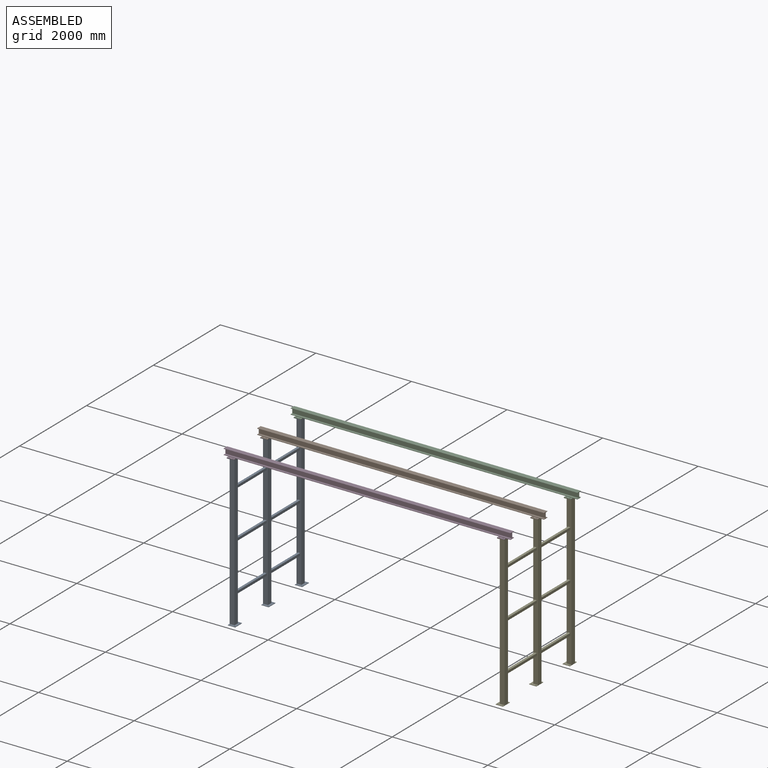
[diagram: assembled view]
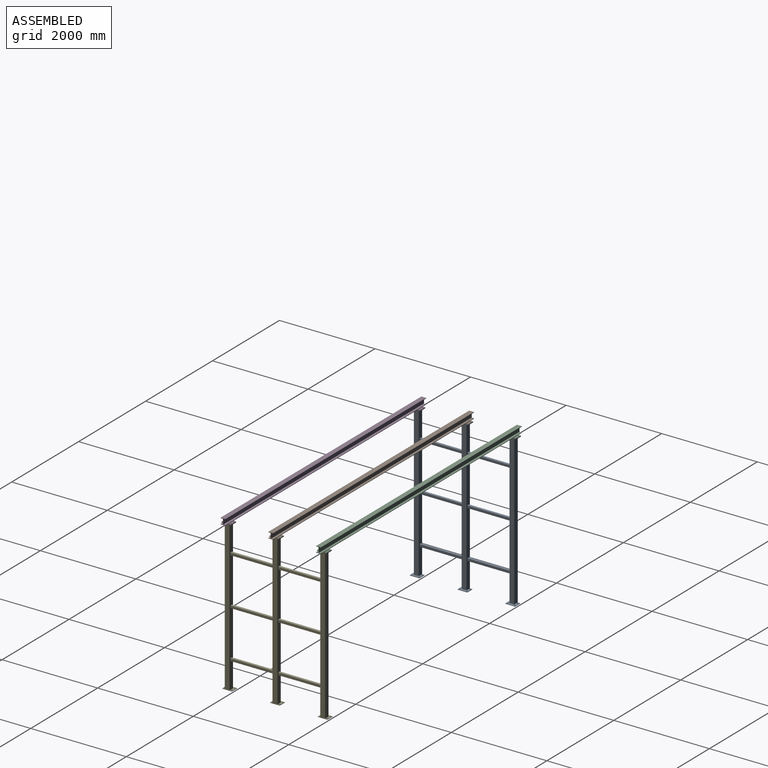
[diagram: assembled view, second angle]
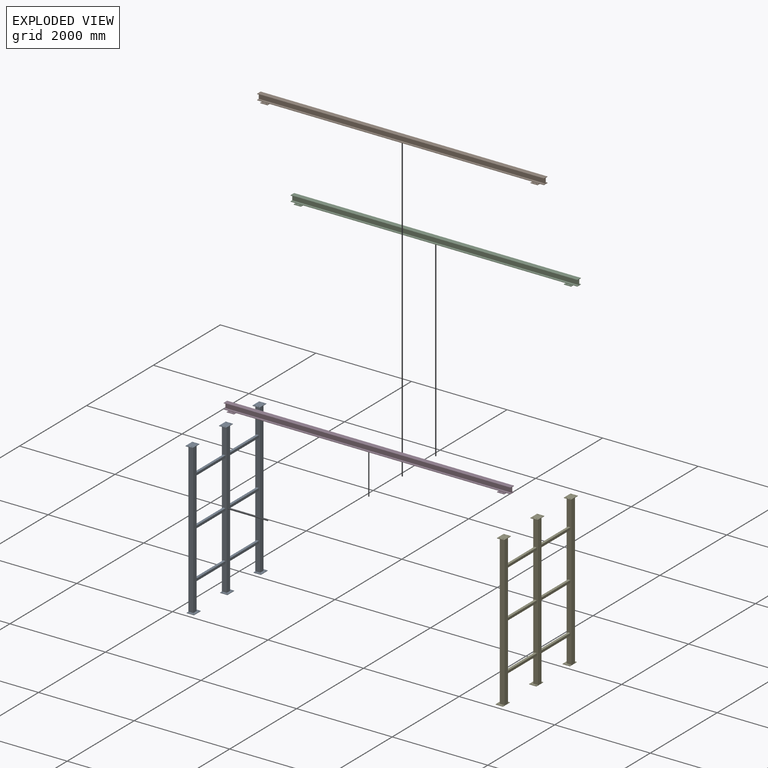
[diagram: exploded view]
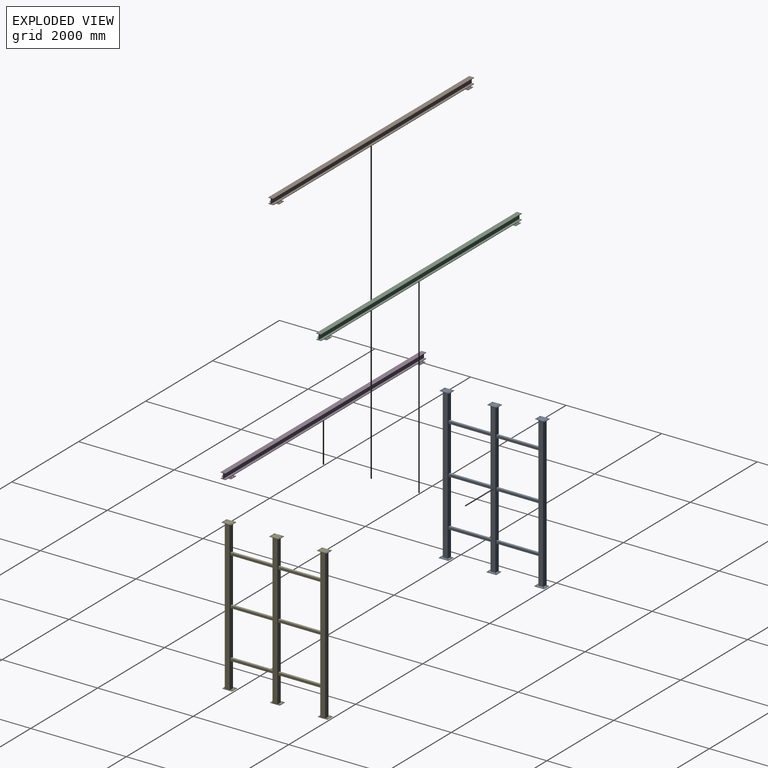
[diagram: exploded view, second angle]
ASSEMBLY  parts=5 mates=13
PART A: 93 faces, bbox 175.8x2201.6x3159.5 mm
  f0: plane 200x150mm, normal (0,0,1), area 28743.4mm2, adj f1,f2,f3,f4,f5,f6,f7,f8
  f1: plane 200x9.53mm, normal (1,0,0), area 1905mm2, adj f0,f2,f4,f18
  f2: plane 150x9.53mm, normal (0,-1,0), area 1428.8mm2, adj f0,f1,f3,f18
  f3: plane 200x9.53mm, normal (-1,0,0), area 1905mm2, adj f0,f2,f4,f18
  f4: plane 150x9.53mm, normal (0,1,0), area 1428.8mm2, adj f0,f1,f3,f18
  f5: cylinder r=10mm len=20mm, axis (0,0,-1), area 598.5mm2, adj f0,f18
  f6: cylinder r=10mm len=20mm, axis (0,0,-1), area 598.5mm2, adj f0,f18
  f7: cylinder r=10mm len=20mm, axis (0,0,-1), area 598.5mm2, adj f0,f18
  f8: cylinder r=10mm len=20mm, axis (0,0,-1), area 598.5mm2, adj f0,f18
  f9: plane 201.6x9.53mm, normal (1,0,0), area 1920.2mm2, adj f14,f15,f16,f20
  f10: cylinder r=10mm len=20mm, axis (0,0,-1), area 598.5mm2, adj f15,f20
  f11: cylinder r=10mm len=20mm, axis (0,0,-1), area 598.5mm2, adj f15,f20
  f12: cylinder r=10mm len=20mm, axis (0,0,-1), area 598.5mm2, adj f15,f20
  f13: cylinder r=10mm len=20mm, axis (0,0,-1), area 598.5mm2, adj f15,f20
  f14: plane 151.6x9.53mm, normal (0,-1,0), area 1444mm2, adj f9,f15,f20,f21
  f15: plane 201.6x151.6mm, normal (0,0,-1), area 29305.9mm2, adj f9,f10,f11,f12,f13,f14,f16,f21
  f16: plane 151.6x9.53mm, normal (0,1,0), area 1444mm2, adj f9,f15,f20,f21
  f17: plane 3140.48x101.6mm, normal (0,1,0), area 319072.3mm2, adj f18,f19,f20,f21
  f18: plane 200x150mm, normal (0,0,-1), area 18420.8mm2, adj f1,f2,f3,f4,f5,f6,f7,f8
  f19: plane 3140.48x101.6mm, normal (1,0,0), area 319072.3mm2, adj f17,f18,f20,f22
  f20: plane 201.6x151.6mm, normal (0,0,1), area 18983.4mm2, adj f9,f10,f11,f12,f13,f14,f16,f17
  f21: plane 3150x201.6mm, normal (-1,0,0), area 320992.5mm2, adj f14,f15,f16,f17,f18,f20,f22
  f22: plane 3140.48x101.6mm, normal (0,-1,0), area 311330.3mm2, adj f18,f19,f20,f21,f24,f25,f26,f27
  f23: plane 200x150mm, normal (0,0,1), area 28743.4mm2, adj f37,f38,f39,f40,f41,f42,f43,f44
  f24: plane 898.4x50.8mm, normal (-1,0,0), area 45638.7mm2, adj f22,f25,f27,f48
  f25: plane 898.4x50.8mm, normal (0,0,1), area 45638.7mm2, adj f22,f24,f26,f48
  f26: plane 898.4x50.8mm, normal (1,0,0), area 45638.7mm2, adj f22,f25,f27,f48
  f27: plane 898.4x50.8mm, normal (0,0,-1), area 45638.7mm2, adj f22,f24,f26,f48
  f28: plane 898.4x50.8mm, normal (0,0,1), area 45638.7mm2, adj f22,f29,f31,f48
  f29: plane 898.4x50.8mm, normal (1,0,0), area 45638.7mm2, adj f22,f28,f30,f48
  f30: plane 898.4x50.8mm, normal (0,0,-1), area 45638.7mm2, adj f22,f29,f31,f48
  f31: plane 898.4x50.8mm, normal (-1,0,0), area 45638.7mm2, adj f22,f28,f30,f48
  f32: plane 898.4x50.8mm, normal (-1,0,0), area 45638.7mm2, adj f22,f33,f35,f48
  f33: plane 898.4x50.8mm, normal (0,0,1), area 45638.7mm2, adj f22,f32,f34,f48
  f34: plane 898.4x50.8mm, normal (1,0,0), area 45638.7mm2, adj f22,f33,f35,f48
  f35: plane 898.4x50.8mm, normal (0,0,-1), area 45638.7mm2, adj f22,f32,f34,f48
  f36: plane 201.6x151.6mm, normal (0,0,-1), area 29305.9mm2, adj f45,f46,f47,f49,f50,f51,f52,f53
  f37: plane 200x9.53mm, normal (1,0,0), area 1905mm2, adj f23,f38,f40,f54
  f38: plane 150x9.53mm, normal (0,-1,0), area 1428.8mm2, adj f23,f37,f39,f54
  f39: plane 200x9.53mm, normal (-1,0,0), area 1905mm2, adj f23,f38,f40,f54
  f40: plane 150x9.53mm, normal (0,1,0), area 1428.8mm2, adj f23,f37,f39,f54
  f41: cylinder r=10mm len=20mm, axis (0,0,-1), area 598.5mm2, adj f23,f54
  f42: cylinder r=10mm len=20mm, axis (0,0,-1), area 598.5mm2, adj f23,f54
  f43: cylinder r=10mm len=20mm, axis (0,0,-1), area 598.5mm2, adj f23,f54
  f44: cylinder r=10mm len=20mm, axis (0,0,-1), area 598.5mm2, adj f23,f54
  f45: plane 151.6x9.53mm, normal (0,1,0), area 1444mm2, adj f36,f46,f53,f56
  f46: plane 201.6x9.53mm, normal (1,0,0), area 1920.2mm2, adj f36,f45,f47,f56
  f47: plane 151.6x9.53mm, normal (0,-1,0), area 1444mm2, adj f36,f46,f53,f56
  f48: plane 3140.48x101.6mm, normal (0,1,0), area 311330.3mm2, adj f24,f25,f26,f27,f28,f29,f30,f31
  f49: cylinder r=10mm len=20mm, axis (0,0,-1), area 598.5mm2, adj f36,f56
  f50: cylinder r=10mm len=20mm, axis (0,0,-1), area 598.5mm2, adj f36,f56
  f51: cylinder r=10mm len=20mm, axis (0,0,-1), area 598.5mm2, adj f36,f56
  f52: cylinder r=10mm len=20mm, axis (0,0,-1), area 598.5mm2, adj f36,f56
  f53: plane 3150x201.6mm, normal (-1,0,0), area 320992.5mm2, adj f36,f45,f47,f48,f54,f56,f57
  f54: plane 200x150mm, normal (0,0,-1), area 18420.8mm2, adj f37,f38,f39,f40,f41,f42,f43,f44
  f55: plane 3140.48x101.6mm, normal (1,0,0), area 319072.3mm2, adj f48,f54,f56,f57
  f56: plane 201.6x151.6mm, normal (0,0,1), area 18983.4mm2, adj f45,f46,f47,f48,f49,f50,f51,f52
  f57: plane 3140.48x101.6mm, normal (0,-1,0), area 311330.3mm2, adj f53,f54,f55,f56,f63,f64,f65,f66
  f58: plane 201.6x9.53mm, normal (1,0,0), area 1920.2mm2, adj f75,f76,f77,f78
  f59: cylinder r=10mm len=20mm, axis (0,0,-1), area 598.5mm2, adj f77,f78
  f60: cylinder r=10mm len=20mm, axis (0,0,-1), area 598.5mm2, adj f77,f78
  f61: cylinder r=10mm len=20mm, axis (0,0,-1), area 598.5mm2, adj f77,f78
  f62: cylinder r=10mm len=20mm, axis (0,0,-1), area 598.5mm2, adj f77,f78
  f63: plane 898.4x50.8mm, normal (-1,0,0), area 45638.7mm2, adj f57,f64,f66,f87
  f64: plane 898.4x50.8mm, normal (0,0,1), area 45638.7mm2, adj f57,f63,f65,f87
  f65: plane 898.4x50.8mm, normal (1,0,0), area 45638.7mm2, adj f57,f64,f66,f87
  f66: plane 898.4x50.8mm, normal (0,0,-1), area 45638.7mm2, adj f57,f63,f65,f87
  f67: plane 898.4x50.8mm, normal (0,0,1), area 45638.7mm2, adj f57,f68,f70,f87
  f68: plane 898.4x50.8mm, normal (1,0,0), area 45638.7mm2, adj f57,f67,f69,f87
  f69: plane 898.4x50.8mm, normal (0,0,-1), area 45638.7mm2, adj f57,f68,f70,f87
  f70: plane 898.4x50.8mm, normal (-1,0,0), area 45638.7mm2, adj f57,f67,f69,f87
  f71: plane 898.4x50.8mm, normal (-1,0,0), area 45638.7mm2, adj f57,f72,f74,f87
  f72: plane 898.4x50.8mm, normal (0,0,1), area 45638.7mm2, adj f57,f71,f73,f87
  f73: plane 898.4x50.8mm, normal (1,0,0), area 45638.7mm2, adj f57,f72,f74,f87
  f74: plane 898.4x50.8mm, normal (0,0,-1), area 45638.7mm2, adj f57,f71,f73,f87
  f75: plane 151.6x9.53mm, normal (0,1,0), area 1444mm2, adj f58,f77,f78,f88
  f76: plane 151.6x9.53mm, normal (0,-1,0), area 1444mm2, adj f58,f77,f78,f88
  f77: plane 201.6x151.6mm, normal (0,0,-1), area 29305.9mm2, adj f58,f59,f60,f61,f62,f75,f76,f88
  f78: plane 201.6x151.6mm, normal (0,0,1), area 18983.4mm2, adj f58,f59,f60,f61,f62,f75,f76,f86
  f79: plane 200x9.53mm, normal (1,0,0), area 1905mm2, adj f80,f82,f90,f91
  f80: plane 150x9.53mm, normal (0,-1,0), area 1428.8mm2, adj f79,f81,f90,f91
  f81: plane 200x9.53mm, normal (-1,0,0), area 1905mm2, adj f80,f82,f90,f91
  f82: plane 150x9.53mm, normal (0,1,0), area 1428.8mm2, adj f79,f81,f90,f91
  f83: cylinder r=10mm len=20mm, axis (0,0,-1), area 598.5mm2, adj f90,f91
  f84: cylinder r=10mm len=20mm, axis (0,0,-1), area 598.5mm2, adj f90,f91
  f85: cylinder r=10mm len=20mm, axis (0,0,-1), area 598.5mm2, adj f90,f91
  f86: plane 3140.48x101.6mm, normal (1,0,0), area 319072.3mm2, adj f78,f87,f89,f91
  f87: plane 3140.48x101.6mm, normal (0,1,0), area 311330.3mm2, adj f63,f64,f65,f66,f67,f68,f69,f70
  f88: plane 3150x201.6mm, normal (-1,0,0), area 320992.5mm2, adj f75,f76,f77,f78,f87,f89,f91
  f89: plane 3140.48x101.6mm, normal (0,-1,0), area 319072.3mm2, adj f78,f86,f88,f91
  f90: plane 200x150mm, normal (0,0,1), area 28743.4mm2, adj f79,f80,f81,f82,f83,f84,f85,f92
  f91: plane 200x150mm, normal (0,0,-1), area 18420.8mm2, adj f79,f80,f81,f82,f83,f84,f85,f86
  f92: cylinder r=10mm len=20mm, axis (0,0,-1), area 598.5mm2, adj f90,f91
PART B: 38 faces, bbox 6000x200x136.5 mm
  f0: cylinder r=10mm len=20mm, axis (0,0,1), area 598.5mm2, adj f2,f4
  f1: cylinder r=10mm len=20mm, axis (0,0,1), area 598.5mm2, adj f2,f4
  f2: plane 200x150mm, normal (0,0,-1), area 28743.4mm2, adj f0,f1,f3,f5,f6,f7,f8,f9
  f3: plane 150x9.53mm, normal (0,1,0), area 1428.8mm2, adj f2,f4,f5,f9
  f4: plane 150x49.2mm, normal (0,0,1), area 6751.7mm2, adj f0,f1,f3,f5,f9,f18
  f5: plane 200x9.53mm, normal (1,0,0), area 1905mm2, adj f2,f3,f4,f6,f21,f22
  f6: plane 150x9.53mm, normal (0,-1,0), area 1428.8mm2, adj f2,f5,f9,f22
  f7: cylinder r=10mm len=20mm, axis (0,0,1), area 598.5mm2, adj f2,f22
  f8: cylinder r=10mm len=20mm, axis (0,0,1), area 598.5mm2, adj f2,f22
  f9: plane 200x9.53mm, normal (-1,0,0), area 1905mm2, adj f2,f3,f4,f6,f22,f23
  f10: plane 6000x10.3mm, normal (0,1,0), area 61800mm2, adj f11,f17,f20,f24
  f11: plane 6000x47.44mm, normal (0,0,-1), area 284640mm2, adj f10,f12,f20,f24
  f12: plane 6000x106.4mm, normal (0,1,0), area 638400mm2, adj f11,f13,f20,f24
  f13: plane 6000x47.44mm, normal (0,0,1), area 284640mm2, adj f12,f18,f20,f24
  f14: plane 6000x106.4mm, normal (0,-1,0), area 638400mm2, adj f15,f19,f20,f24
  f15: plane 6000x47.5mm, normal (0,0,-1), area 285000mm2, adj f14,f16,f20,f24
  f16: plane 6000x10.3mm, normal (0,-1,0), area 61800mm2, adj f15,f17,f20,f24
  f17: plane 6000x101.6mm, normal (0,0,1), area 609600mm2, adj f10,f16,f20,f24
  f18: plane 6000x10.3mm, normal (0,1,0), area 61800mm2, adj f4,f13,f20,f21,f23,f24,f25,f26
  f19: plane 6000x47.5mm, normal (0,0,1), area 285000mm2, adj f14,f20,f24,f32
  f20: plane 127x101.6mm, normal (1,0,0), area 2801.6mm2, adj f10,f11,f12,f13,f14,f15,f16,f17
  f21: plane 5503.4x101.6mm, normal (0,0,-1), area 559145.4mm2, adj f5,f18,f31,f32
  f22: plane 150x49.2mm, normal (0,0,1), area 6751.7mm2, adj f5,f6,f7,f8,f9,f32
  f23: plane 101.6x98.3mm, normal (0,0,-1), area 9987.3mm2, adj f9,f18,f24,f32
  f24: plane 127x101.6mm, normal (-1,0,0), area 2801.6mm2, adj f10,f11,f12,f13,f14,f15,f16,f17
  f25: plane 101.6x98.3mm, normal (0,0,-1), area 9987.3mm2, adj f18,f20,f32,f33
  f26: plane 150x49.2mm, normal (0,0,1), area 6751.7mm2, adj f18,f27,f28,f29,f31,f33
  f27: plane 150x9.53mm, normal (0,1,0), area 1428.8mm2, adj f26,f31,f33,f35
  f28: cylinder r=10mm len=20mm, axis (0,0,1), area 598.5mm2, adj f26,f35
  f29: cylinder r=10mm len=20mm, axis (0,0,1), area 598.5mm2, adj f26,f35
  f30: plane 150x9.53mm, normal (0,-1,0), area 1428.8mm2, adj f31,f33,f35,f36
  f31: plane 200x9.53mm, normal (-1,0,0), area 1905mm2, adj f21,f26,f27,f30,f35,f36
  f32: plane 6000x10.3mm, normal (0,-1,0), area 61800mm2, adj f19,f20,f21,f22,f23,f24,f25,f36
  f33: plane 200x9.53mm, normal (1,0,0), area 1905mm2, adj f25,f26,f27,f30,f35,f36
  f34: cylinder r=10mm len=20mm, axis (0,0,1), area 598.5mm2, adj f35,f36
  f35: plane 200x150mm, normal (0,0,-1), area 28743.4mm2, adj f27,f28,f29,f30,f31,f33,f34,f37
  f36: plane 150x49.2mm, normal (0,0,1), area 6751.7mm2, adj f30,f31,f32,f33,f34,f37
  f37: cylinder r=10mm len=20mm, axis (0,0,1), area 598.5mm2, adj f35,f36
PART C: same geometry as B
PART D: same geometry as B
PART E: 93 faces, bbox 175.8x2201.6x3159.5 mm
  f0: plane 200x150mm, normal (0,0,1), area 28743.4mm2, adj f1,f2,f3,f4,f5,f6,f7,f8
  f1: plane 150x9.53mm, normal (0,1,0), area 1428.8mm2, adj f0,f2,f4,f18
  f2: plane 200x9.53mm, normal (-1,0,0), area 1905mm2, adj f0,f1,f3,f18
  f3: plane 150x9.53mm, normal (0,-1,0), area 1428.8mm2, adj f0,f2,f4,f18
  f4: plane 200x9.53mm, normal (1,0,0), area 1905mm2, adj f0,f1,f3,f18
  f5: cylinder r=10mm len=20mm, axis (0,0,-1), area 598.5mm2, adj f0,f18
  f6: cylinder r=10mm len=20mm, axis (0,0,-1), area 598.5mm2, adj f0,f18
  f7: cylinder r=10mm len=20mm, axis (0,0,-1), area 598.5mm2, adj f0,f18
  f8: cylinder r=10mm len=20mm, axis (0,0,-1), area 598.5mm2, adj f0,f18
  f9: plane 201.6x9.53mm, normal (-1,0,0), area 1920.2mm2, adj f14,f15,f16,f20
  f10: cylinder r=10mm len=20mm, axis (0,0,-1), area 598.5mm2, adj f15,f20
  f11: cylinder r=10mm len=20mm, axis (0,0,-1), area 598.5mm2, adj f15,f20
  f12: cylinder r=10mm len=20mm, axis (0,0,-1), area 598.5mm2, adj f15,f20
  f13: cylinder r=10mm len=20mm, axis (0,0,-1), area 598.5mm2, adj f15,f20
  f14: plane 151.6x9.53mm, normal (0,1,0), area 1444mm2, adj f9,f15,f20,f21
  f15: plane 201.6x151.6mm, normal (0,0,-1), area 29305.9mm2, adj f9,f10,f11,f12,f13,f14,f16,f21
  f16: plane 151.6x9.53mm, normal (0,-1,0), area 1444mm2, adj f9,f15,f20,f21
  f17: plane 3140.48x101.6mm, normal (0,-1,0), area 319072.3mm2, adj f18,f19,f20,f21
  f18: plane 200x150mm, normal (0,0,-1), area 18420.8mm2, adj f1,f2,f3,f4,f5,f6,f7,f8
  f19: plane 3140.48x101.6mm, normal (-1,0,0), area 319072.3mm2, adj f17,f18,f20,f22
  f20: plane 201.6x151.6mm, normal (0,0,1), area 18983.4mm2, adj f9,f10,f11,f12,f13,f14,f16,f17
  f21: plane 3150x201.6mm, normal (1,0,0), area 320992.5mm2, adj f14,f15,f16,f17,f18,f20,f22
  f22: plane 3140.48x101.6mm, normal (0,1,0), area 311330.3mm2, adj f18,f19,f20,f21,f24,f25,f26,f27
  f23: plane 200x150mm, normal (0,0,1), area 28743.4mm2, adj f37,f38,f39,f40,f41,f42,f43,f44
  f24: plane 898.4x50.8mm, normal (0,0,-1), area 45638.7mm2, adj f22,f25,f27,f48
  f25: plane 898.4x50.8mm, normal (1,0,0), area 45638.7mm2, adj f22,f24,f26,f48
  f26: plane 898.4x50.8mm, normal (0,0,1), area 45638.7mm2, adj f22,f25,f27,f48
  f27: plane 898.4x50.8mm, normal (-1,0,0), area 45638.7mm2, adj f22,f24,f26,f48
  f28: plane 898.4x50.8mm, normal (1,0,0), area 45638.7mm2, adj f22,f29,f31,f48
  f29: plane 898.4x50.8mm, normal (0,0,1), area 45638.7mm2, adj f22,f28,f30,f48
  f30: plane 898.4x50.8mm, normal (-1,0,0), area 45638.7mm2, adj f22,f29,f31,f48
  f31: plane 898.4x50.8mm, normal (0,0,-1), area 45638.7mm2, adj f22,f28,f30,f48
  f32: plane 898.4x50.8mm, normal (0,0,-1), area 45638.7mm2, adj f22,f33,f35,f48
  f33: plane 898.4x50.8mm, normal (1,0,0), area 45638.7mm2, adj f22,f32,f34,f48
  f34: plane 898.4x50.8mm, normal (0,0,1), area 45638.7mm2, adj f22,f33,f35,f48
  f35: plane 898.4x50.8mm, normal (-1,0,0), area 45638.7mm2, adj f22,f32,f34,f48
  f36: plane 201.6x151.6mm, normal (0,0,-1), area 29305.9mm2, adj f45,f46,f47,f49,f50,f51,f52,f53
  f37: plane 150x9.53mm, normal (0,1,0), area 1428.8mm2, adj f23,f38,f40,f54
  f38: plane 200x9.53mm, normal (-1,0,0), area 1905mm2, adj f23,f37,f39,f54
  f39: plane 150x9.53mm, normal (0,-1,0), area 1428.8mm2, adj f23,f38,f40,f54
  f40: plane 200x9.53mm, normal (1,0,0), area 1905mm2, adj f23,f37,f39,f54
  f41: cylinder r=10mm len=20mm, axis (0,0,-1), area 598.5mm2, adj f23,f54
  f42: cylinder r=10mm len=20mm, axis (0,0,-1), area 598.5mm2, adj f23,f54
  f43: cylinder r=10mm len=20mm, axis (0,0,-1), area 598.5mm2, adj f23,f54
  f44: cylinder r=10mm len=20mm, axis (0,0,-1), area 598.5mm2, adj f23,f54
  f45: plane 151.6x9.53mm, normal (0,-1,0), area 1444mm2, adj f36,f46,f53,f56
  f46: plane 201.6x9.53mm, normal (-1,0,0), area 1920.2mm2, adj f36,f45,f47,f56
  f47: plane 151.6x9.53mm, normal (0,1,0), area 1444mm2, adj f36,f46,f53,f56
  f48: plane 3140.48x101.6mm, normal (0,-1,0), area 311330.3mm2, adj f24,f25,f26,f27,f28,f29,f30,f31
  f49: cylinder r=10mm len=20mm, axis (0,0,-1), area 598.5mm2, adj f36,f56
  f50: cylinder r=10mm len=20mm, axis (0,0,-1), area 598.5mm2, adj f36,f56
  f51: cylinder r=10mm len=20mm, axis (0,0,-1), area 598.5mm2, adj f36,f56
  f52: cylinder r=10mm len=20mm, axis (0,0,-1), area 598.5mm2, adj f36,f56
  f53: plane 3150x201.6mm, normal (1,0,0), area 320992.5mm2, adj f36,f45,f47,f48,f54,f56,f62
  f54: plane 200x150mm, normal (0,0,-1), area 18420.8mm2, adj f37,f38,f39,f40,f41,f42,f43,f44
  f55: plane 3140.48x101.6mm, normal (-1,0,0), area 319072.3mm2, adj f48,f54,f56,f62
  f56: plane 201.6x151.6mm, normal (0,0,1), area 18983.4mm2, adj f45,f46,f47,f48,f49,f50,f51,f52
  f57: plane 201.6x9.53mm, normal (-1,0,0), area 1920.2mm2, adj f63,f64,f65,f66
  f58: cylinder r=10mm len=20mm, axis (0,0,-1), area 598.5mm2, adj f64,f66
  f59: cylinder r=10mm len=20mm, axis (0,0,-1), area 598.5mm2, adj f64,f66
  f60: cylinder r=10mm len=20mm, axis (0,0,-1), area 598.5mm2, adj f64,f66
  f61: cylinder r=10mm len=20mm, axis (0,0,-1), area 598.5mm2, adj f64,f66
  f62: plane 3140.48x101.6mm, normal (0,1,0), area 311330.3mm2, adj f53,f54,f55,f56,f67,f68,f69,f70
  f63: plane 151.6x9.53mm, normal (0,1,0), area 1444mm2, adj f57,f64,f66,f88
  f64: plane 201.6x151.6mm, normal (0,0,-1), area 29305.9mm2, adj f57,f58,f59,f60,f61,f63,f65,f88
  f65: plane 151.6x9.53mm, normal (0,-1,0), area 1444mm2, adj f57,f64,f66,f88
  f66: plane 201.6x151.6mm, normal (0,0,1), area 18983.4mm2, adj f57,f58,f59,f60,f61,f63,f65,f86
  f67: plane 898.4x50.8mm, normal (0,0,-1), area 45638.7mm2, adj f62,f68,f70,f89
  f68: plane 898.4x50.8mm, normal (1,0,0), area 45638.7mm2, adj f62,f67,f69,f89
  f69: plane 898.4x50.8mm, normal (0,0,1), area 45638.7mm2, adj f62,f68,f70,f89
  f70: plane 898.4x50.8mm, normal (-1,0,0), area 45638.7mm2, adj f62,f67,f69,f89
  f71: plane 898.4x50.8mm, normal (0,0,1), area 45638.7mm2, adj f62,f72,f74,f89
  f72: plane 898.4x50.8mm, normal (-1,0,0), area 45638.7mm2, adj f62,f71,f73,f89
  f73: plane 898.4x50.8mm, normal (0,0,-1), area 45638.7mm2, adj f62,f72,f74,f89
  f74: plane 898.4x50.8mm, normal (1,0,0), area 45638.7mm2, adj f62,f71,f73,f89
  f75: plane 898.4x50.8mm, normal (0,0,-1), area 45638.7mm2, adj f62,f76,f78,f89
  f76: plane 898.4x50.8mm, normal (1,0,0), area 45638.7mm2, adj f62,f75,f77,f89
  f77: plane 898.4x50.8mm, normal (0,0,1), area 45638.7mm2, adj f62,f76,f78,f89
  f78: plane 898.4x50.8mm, normal (-1,0,0), area 45638.7mm2, adj f62,f75,f77,f89
  f79: plane 150x9.53mm, normal (0,1,0), area 1428.8mm2, adj f80,f82,f90,f91
  f80: plane 200x9.53mm, normal (-1,0,0), area 1905mm2, adj f79,f81,f90,f91
  f81: plane 150x9.53mm, normal (0,-1,0), area 1428.8mm2, adj f80,f82,f90,f91
  f82: plane 200x9.53mm, normal (1,0,0), area 1905mm2, adj f79,f81,f90,f91
  f83: cylinder r=10mm len=20mm, axis (0,0,-1), area 598.5mm2, adj f90,f91
  f84: cylinder r=10mm len=20mm, axis (0,0,-1), area 598.5mm2, adj f90,f91
  f85: cylinder r=10mm len=20mm, axis (0,0,-1), area 598.5mm2, adj f90,f91
  f86: plane 3140.48x101.6mm, normal (-1,0,0), area 319072.3mm2, adj f66,f87,f89,f91
  f87: plane 3140.48x101.6mm, normal (0,1,0), area 319072.3mm2, adj f66,f86,f88,f91
  f88: plane 3150x201.6mm, normal (1,0,0), area 320992.5mm2, adj f63,f64,f65,f66,f87,f89,f91
  f89: plane 3140.48x101.6mm, normal (0,-1,0), area 311330.3mm2, adj f66,f67,f68,f69,f70,f71,f72,f73
  f90: plane 200x150mm, normal (0,0,1), area 28743.4mm2, adj f79,f80,f81,f82,f83,f84,f85,f92
  f91: plane 200x150mm, normal (0,0,-1), area 18420.8mm2, adj f79,f80,f81,f82,f83,f84,f85,f86
  f92: cylinder r=10mm len=20mm, axis (0,0,-1), area 598.5mm2, adj f90,f91
PLACE A t=(-1890.21,-4998.86,-1188.12)mm
PLACE B t=(-4890.21,-4998.86,2044.43)mm
PLACE C t=(-4890.21,-3998.86,2044.43)mm
PLACE D t=(-4890.21,-5998.86,2044.43)mm
PLACE E t=(-1890.21,-4998.86,-1188.12)mm
MATE planar C.f2 <-> A.f0  axis (0,0,-1) through (-4641.91,-3998.86,1971.4)mm
MATE planar A.f23 <-> B.f2  axis (0,0,1) through (-4716.91,-4998.86,1971.4)mm
MATE planar D.f2 <-> A.f90  axis (0,0,-1) through (-4716.91,-5998.86,1971.4)mm
MATE planar B.f9 <-> A.f39  axis (-1,0,0) through (-4791.91,-4998.86,1976.16)mm
MATE planar E.f0 <-> B.f35  axis (0,0,1) through (936.49,-5998.86,1971.4)mm
MATE planar D.f33 <-> E.f4  axis (1,0,0) through (1011.49,-6098.86,1980.93)mm
MATE planar B.f6 <-> A.f38  axis (0,-1,0) through (-4716.91,-5098.86,1976.16)mm
MATE planar D.f5 <-> A.f79  axis (1,0,0) through (-4641.91,-5998.86,1976.16)mm
MATE planar C.f9 <-> A.f3  axis (-1,0,0) through (-4791.91,-3998.86,1976.16)mm
MATE planar C.f6 <-> A.f2  axis (0,-1,0) through (-4716.91,-4098.86,1976.16)mm
MATE planar D.f35 <-> E.f0  axis (0,0,-1) through (1011.49,-5998.86,1971.4)mm
MATE planar D.f30 <-> E.f3  axis (0,-1,0) through (936.49,-6098.86,1976.16)mm
MATE planar D.f6 <-> A.f80  axis (0,-1,0) through (-4716.91,-6098.86,1976.16)mm
